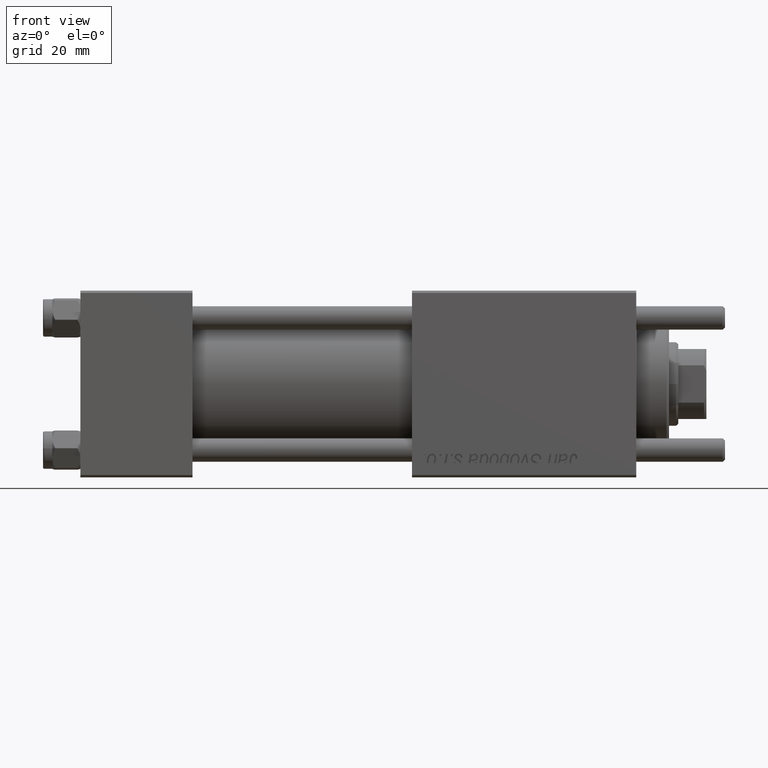
[diagram: clean part render]
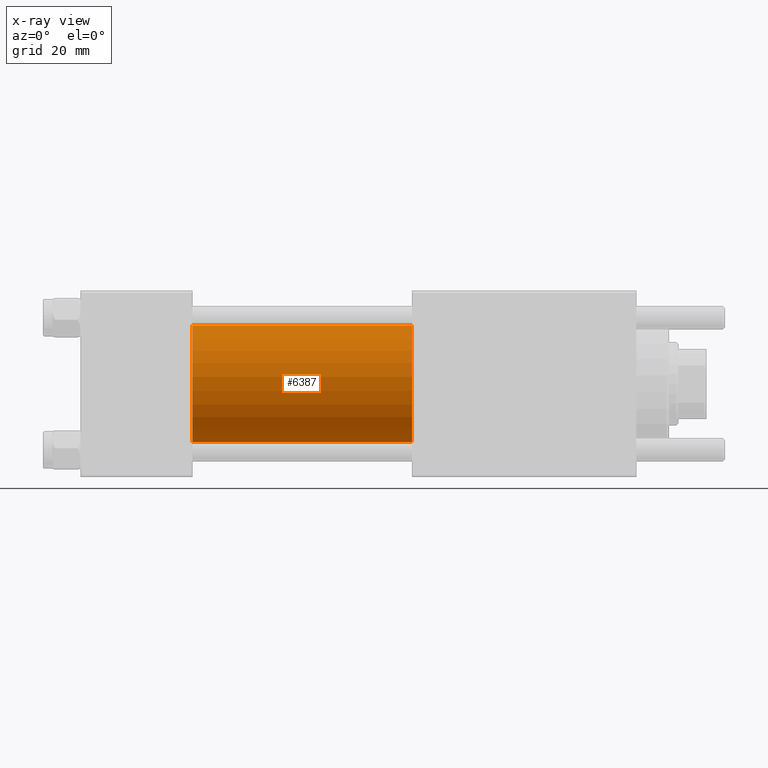
[diagram: x-ray — body ghosted, one internal face saturated and labeled with its STEP entity id]
A machine part, front view, then the same camera in x-ray: the body is ghosted and one INTERNAL B-rep face — a face not visible from any outside direction — is saturated and labeled: STEP entity #6387.
In plain terms, the highlighted cylindrical surface (partial cylindrical patch) has radius 12.5 mm, axis along (-1, -0, -0).
Its self-contained STEP definition (entity closure, byte-faithful):
#3884 = VERTEX_POINT ( 'NONE', #48504 ) ;
#5569 = VECTOR ( 'NONE', #15912, 1000.000000000000000 ) ;
#6387 = ADVANCED_FACE ( 'NONE', ( #46196 ), #7511, .F. ) ;
#6567 = DIRECTION ( 'NONE',  ( 0.000000000000000000, 0.000000000000000000, -1.000000000000000000 ) ) ;
#7511 = CYLINDRICAL_SURFACE ( 'NONE', #31189, 12.49999999999999645 ) ;
#9941 = CARTESIAN_POINT ( 'NONE',  ( 24.00000000000000000, -2.602085213965210642E-15, 12.49999999999999645 ) ) ;
#10134 = CARTESIAN_POINT ( 'NONE',  ( 71.00000000000001421, -2.602085213965210642E-15, 12.49999999999999645 ) ) ;
#11367 = CIRCLE ( 'NONE', #23208, 12.49999999999999645 ) ;
#11448 = CARTESIAN_POINT ( 'NONE',  ( 71.00000000000001421, -2.602085213965210642E-15, 0.000000000000000000 ) ) ;
#12085 = DIRECTION ( 'NONE',  ( -1.000000000000000000, -0.000000000000000000, -0.000000000000000000 ) ) ;
#13707 = ORIENTED_EDGE ( 'NONE', *, *, #26039, .F. ) ;
#14169 = VERTEX_POINT ( 'NONE', #10134 ) ;
#14717 = ORIENTED_EDGE ( 'NONE', *, *, #55933, .T. ) ;
#14727 = AXIS2_PLACEMENT_3D ( 'NONE', #40840, #26321, #19064 ) ;
#15912 = DIRECTION ( 'NONE',  ( -1.000000000000000000, -0.000000000000000000, -0.000000000000000000 ) ) ;
#16108 = CARTESIAN_POINT ( 'NONE',  ( 71.00000000000001421, -2.602085213965210642E-15, 0.000000000000000000 ) ) ;
#18339 = CARTESIAN_POINT ( 'NONE',  ( 71.00000000000001421, -2.602085213965210642E-15, 12.49999999999999645 ) ) ;
#19064 = DIRECTION ( 'NONE',  ( 0.000000000000000000, 0.000000000000000000, -1.000000000000000000 ) ) ;
#21053 = EDGE_CURVE ( 'NONE', #14169, #3884, #11367, .T. ) ;
#22354 = LINE ( 'NONE', #18339, #43430 ) ;
#23013 = ORIENTED_EDGE ( 'NONE', *, *, #56696, .F. ) ;
#23208 = AXIS2_PLACEMENT_3D ( 'NONE', #11448, #55550, #6567 ) ;
#24693 = DIRECTION ( 'NONE',  ( 0.000000000000000000, 0.000000000000000000, 1.000000000000000000 ) ) ;
#26039 = EDGE_CURVE ( 'NONE', #14169, #30224, #22354, .T. ) ;
#26321 = DIRECTION ( 'NONE',  ( 1.000000000000000000, 0.000000000000000000, 0.000000000000000000 ) ) ;
#28786 = CARTESIAN_POINT ( 'NONE',  ( 71.00000000000001421, -1.071276715031019515E-15, -12.49999999999999645 ) ) ;
#30224 = VERTEX_POINT ( 'NONE', #9941 ) ;
#31189 = AXIS2_PLACEMENT_3D ( 'NONE', #16108, #12085, #24693 ) ;
#34950 = DIRECTION ( 'NONE',  ( -1.000000000000000000, -0.000000000000000000, -0.000000000000000000 ) ) ;
#35714 = VERTEX_POINT ( 'NONE', #47106 ) ;
#39422 = CIRCLE ( 'NONE', #14727, 12.49999999999999645 ) ;
#40840 = CARTESIAN_POINT ( 'NONE',  ( 24.00000000000000000, -2.602085213965210642E-15, 0.000000000000000000 ) ) ;
#43430 = VECTOR ( 'NONE', #34950, 1000.000000000000000 ) ;
#46097 = ORIENTED_EDGE ( 'NONE', *, *, #21053, .T. ) ;
#46196 = FACE_OUTER_BOUND ( 'NONE', #47569, .T. ) ;
#47106 = CARTESIAN_POINT ( 'NONE',  ( 24.00000000000000000, -1.071276715031019515E-15, -12.49999999999999645 ) ) ;
#47569 = EDGE_LOOP ( 'NONE', ( #46097, #14717, #23013, #13707 ) ) ;
#48504 = CARTESIAN_POINT ( 'NONE',  ( 71.00000000000001421, -1.071276715031019515E-15, -12.49999999999999645 ) ) ;
#54299 = LINE ( 'NONE', #28786, #5569 ) ;
#55550 = DIRECTION ( 'NONE',  ( 1.000000000000000000, 0.000000000000000000, 0.000000000000000000 ) ) ;
#55933 = EDGE_CURVE ( 'NONE', #3884, #35714, #54299, .T. ) ;
#56696 = EDGE_CURVE ( 'NONE', #30224, #35714, #39422, .T. ) ;